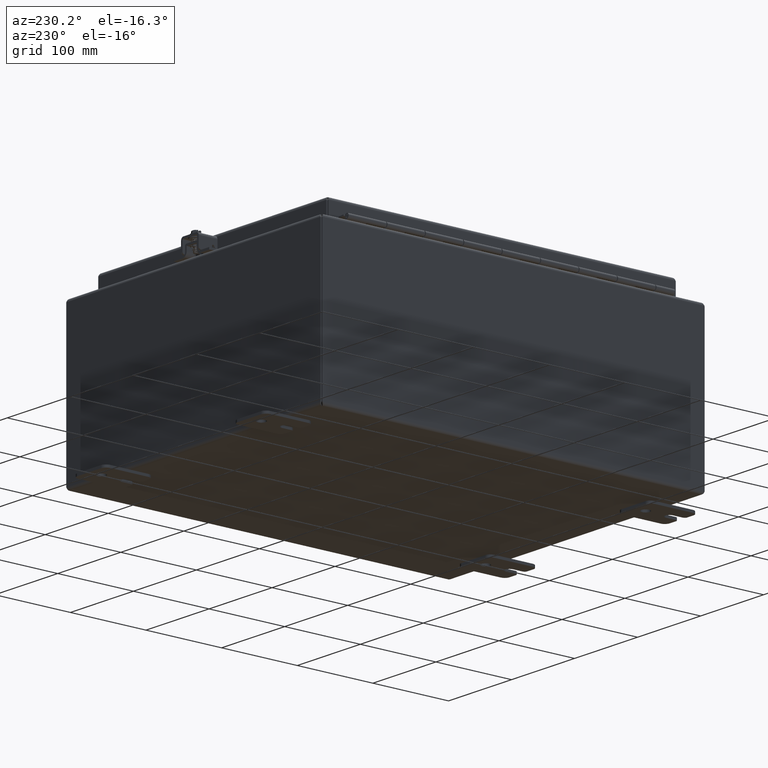
[diagram: clean part render]
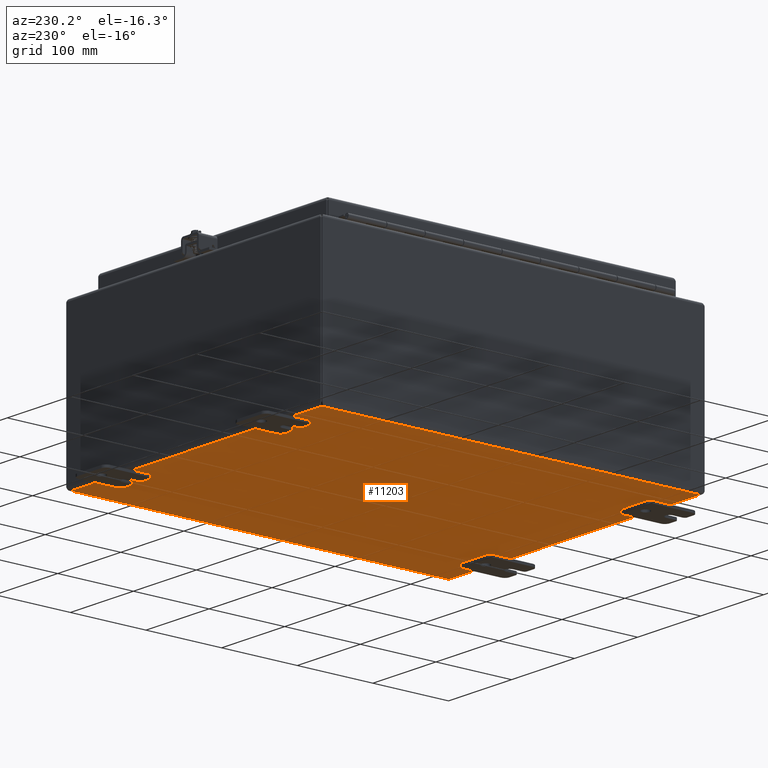
[diagram: same view with one face highlighted and labeled with its STEP entity id]
A machine part, auxiliary view. The second image highlights one B-rep face of the part: STEP entity #11203.
In plain terms, the highlighted planar face has unit normal (0, 0, 1).
Its self-contained STEP definition (entity closure, byte-faithful):
#1130=PLANE('',#11916);
#1499=FACE_OUTER_BOUND('',#2163,.T.);
#2163=EDGE_LOOP('',(#8055,#8056,#8057,#8058));
#2873=LINE('',#15986,#3878);
#2895=LINE('',#16133,#3900);
#2896=LINE('',#16135,#3901);
#2897=LINE('',#16136,#3902);
#3878=VECTOR('',#13007,19.6945);
#3900=VECTOR('',#13067,15.6945);
#3901=VECTOR('',#13068,19.6945);
#3902=VECTOR('',#13069,15.6945);
#5251=VERTEX_POINT('',#15977);
#5252=VERTEX_POINT('',#15985);
#5285=VERTEX_POINT('',#16132);
#5286=VERTEX_POINT('',#16134);
#6313=EDGE_CURVE('',#5252,#5251,#2873,.T.);
#6356=EDGE_CURVE('',#5251,#5285,#2895,.T.);
#6357=EDGE_CURVE('',#5285,#5286,#2896,.T.);
#6358=EDGE_CURVE('',#5286,#5252,#2897,.T.);
#8055=ORIENTED_EDGE('',*,*,#6313,.T.);
#8056=ORIENTED_EDGE('',*,*,#6356,.T.);
#8057=ORIENTED_EDGE('',*,*,#6357,.T.);
#8058=ORIENTED_EDGE('',*,*,#6358,.T.);
#11203=ADVANCED_FACE('',(#1499),#1130,.F.);
#11916=AXIS2_PLACEMENT_3D('',#16131,#13065,#13066);
#13007=DIRECTION('',(-1.42040282592206E-16,1.,0.));
#13065=DIRECTION('center_axis',(0.,0.,1.));
#13066=DIRECTION('ref_axis',(1.,0.,0.));
#13067=DIRECTION('',(1.,0.,0.));
#13068=DIRECTION('',(0.,-1.,0.));
#13069=DIRECTION('',(-1.,0.,0.));
#15977=CARTESIAN_POINT('',(-7.84725,9.84725,-2.18547839493141E-17));
#15985=CARTESIAN_POINT('',(-7.84725,-9.84725,-2.18547839493141E-17));
#15986=CARTESIAN_POINT('',(-7.84725,-4.923625,0.));
#16131=CARTESIAN_POINT('Origin',(-1.04902962956708E-15,1.53998962454965E-15,
0.));
#16132=CARTESIAN_POINT('',(7.84725,9.84725,0.));
#16133=CARTESIAN_POINT('',(-3.923625,9.84725,0.));
#16134=CARTESIAN_POINT('',(7.84725,-9.84725,0.));
#16135=CARTESIAN_POINT('',(7.84725,4.923625,0.));
#16136=CARTESIAN_POINT('',(3.923625,-9.84725,0.));